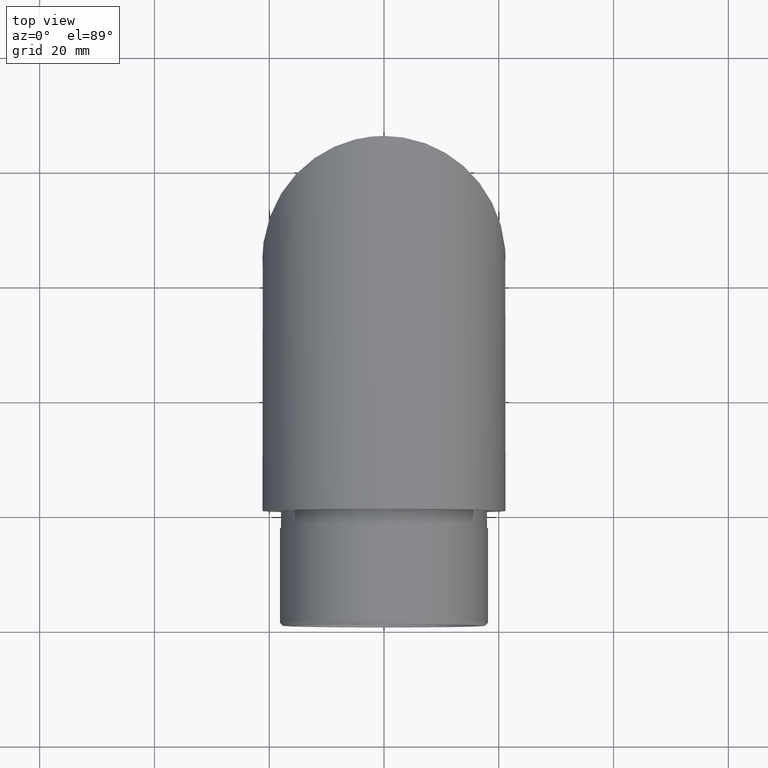
[diagram: clean part render]
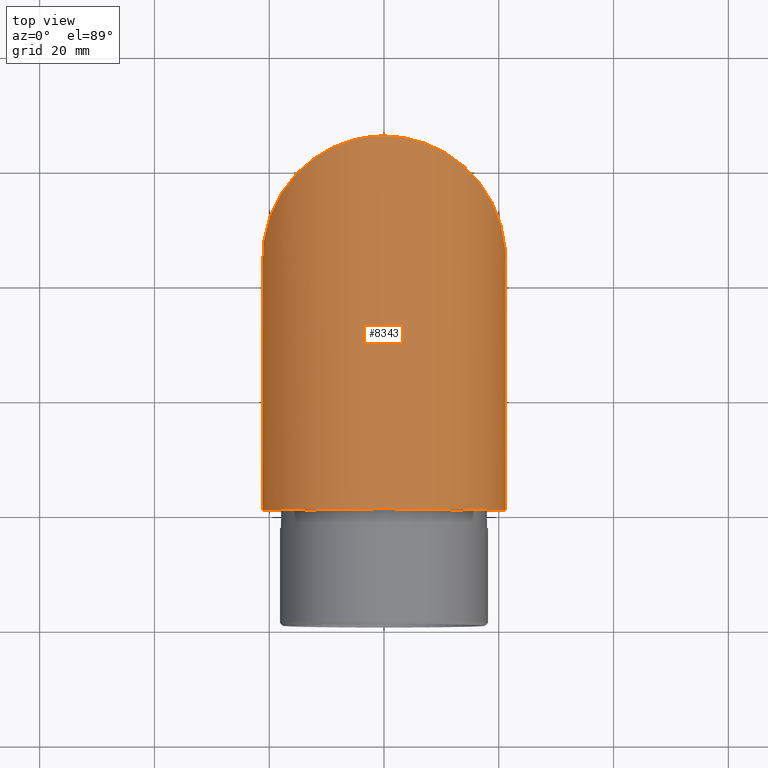
[diagram: same view with one face highlighted and labeled with its STEP entity id]
A machine part, top view. The second image highlights one B-rep face of the part: STEP entity #8343.
In plain terms, the highlighted cylindrical surface (bore or boss wall) has radius 21.2 mm, axis along (-0, -1, -0).
Its self-contained STEP definition (entity closure, byte-faithful):
#511 = CARTESIAN_POINT ( 'NONE',  ( 0.0000000000000000000, 103.7626550446192400, 0.0000000000000000000 ) ) ;
#743 = EDGE_CURVE ( 'NONE', #7180, #7180, #5133, .T. ) ;
#2401 = ORIENTED_EDGE ( 'NONE', *, *, #743, .F. ) ;
#2671 = CARTESIAN_POINT ( 'NONE',  ( 0.0000000000000000000, 22.59999999999993000, -21.19999999999999900 ) ) ;
#2945 = FACE_OUTER_BOUND ( 'NONE', #4481, .T. ) ;
#3799 = CARTESIAN_POINT ( 'NONE',  ( 42.39999999999999100, 65.00000000000008500, 21.20000000000000300 ) ) ;
#4336 = EDGE_CURVE ( 'NONE', #7327, #7327, #12407, .T. ) ;
#4481 = EDGE_LOOP ( 'NONE', ( #2401 ) ) ;
#4727 = CARTESIAN_POINT ( 'NONE',  ( -2.596251214192388800E-015, 65.00000000000008500, 21.19999999999999900 ) ) ;
#5067 = AXIS2_PLACEMENT_3D ( 'NONE', #12382, #10486, #6553 ) ;
#5133 =( BOUNDED_CURVE ( )  B_SPLINE_CURVE ( 3, ( #10536, #5591, #6723, #4727, #3799, #7490, #5671 ),
 .UNSPECIFIED., .T., .F. ) 
 B_SPLINE_CURVE_WITH_KNOTS ( ( 4, 3, 4 ),
 ( 0.0000000000000000000, 3.141592653589793100, 6.283185307179586200 ),
 .UNSPECIFIED. ) 
 CURVE ( )  GEOMETRIC_REPRESENTATION_ITEM ( )  RATIONAL_B_SPLINE_CURVE ( ( 1.000000000000000000, 0.3333333333333333700, 0.3333333333333333700, 1.000000000000000000, 0.3333333333333333700, 0.3333333333333333700, 1.000000000000000000 ) ) 
 REPRESENTATION_ITEM ( '' )  );
#5154 = EDGE_LOOP ( 'NONE', ( #7375 ) ) ;
#5591 = CARTESIAN_POINT ( 'NONE',  ( -42.39999999999999100, 22.59999999999993000, -21.19999999999999900 ) ) ;
#5626 = CARTESIAN_POINT ( 'NONE',  ( 0.0000000000000000000, 0.0000000000000000000, 21.19999999999999900 ) ) ;
#5671 = CARTESIAN_POINT ( 'NONE',  ( 0.0000000000000000000, 22.59999999999993000, -21.19999999999999900 ) ) ;
#6155 = CYLINDRICAL_SURFACE ( 'NONE', #6800, 21.19999999999999900 ) ;
#6553 = DIRECTION ( 'NONE',  ( 0.0000000000000000000, 0.0000000000000000000, 1.000000000000000000 ) ) ;
#6723 = CARTESIAN_POINT ( 'NONE',  ( -42.39999999999999100, 65.00000000000008500, 21.19999999999999600 ) ) ;
#6736 = FACE_OUTER_BOUND ( 'NONE', #5154, .T. ) ;
#6800 = AXIS2_PLACEMENT_3D ( 'NONE', #511, #7384, #8229 ) ;
#7180 = VERTEX_POINT ( 'NONE', #2671 ) ;
#7327 = VERTEX_POINT ( 'NONE', #5626 ) ;
#7375 = ORIENTED_EDGE ( 'NONE', *, *, #4336, .T. ) ;
#7384 = DIRECTION ( 'NONE',  ( -0.0000000000000000000, -1.000000000000000000, -0.0000000000000000000 ) ) ;
#7490 = CARTESIAN_POINT ( 'NONE',  ( 42.39999999999999100, 22.59999999999993000, -21.19999999999999900 ) ) ;
#8229 = DIRECTION ( 'NONE',  ( 0.0000000000000000000, 0.0000000000000000000, -1.000000000000000000 ) ) ;
#8343 = ADVANCED_FACE ( 'NONE', ( #6736, #2945 ), #6155, .T. ) ;
#10486 = DIRECTION ( 'NONE',  ( 0.0000000000000000000, 1.000000000000000000, 0.0000000000000000000 ) ) ;
#10536 = CARTESIAN_POINT ( 'NONE',  ( 0.0000000000000000000, 22.59999999999993000, -21.19999999999999900 ) ) ;
#12382 = CARTESIAN_POINT ( 'NONE',  ( 0.0000000000000000000, 0.0000000000000000000, 0.0000000000000000000 ) ) ;
#12407 = CIRCLE ( 'NONE', #5067, 21.19999999999999900 ) ;